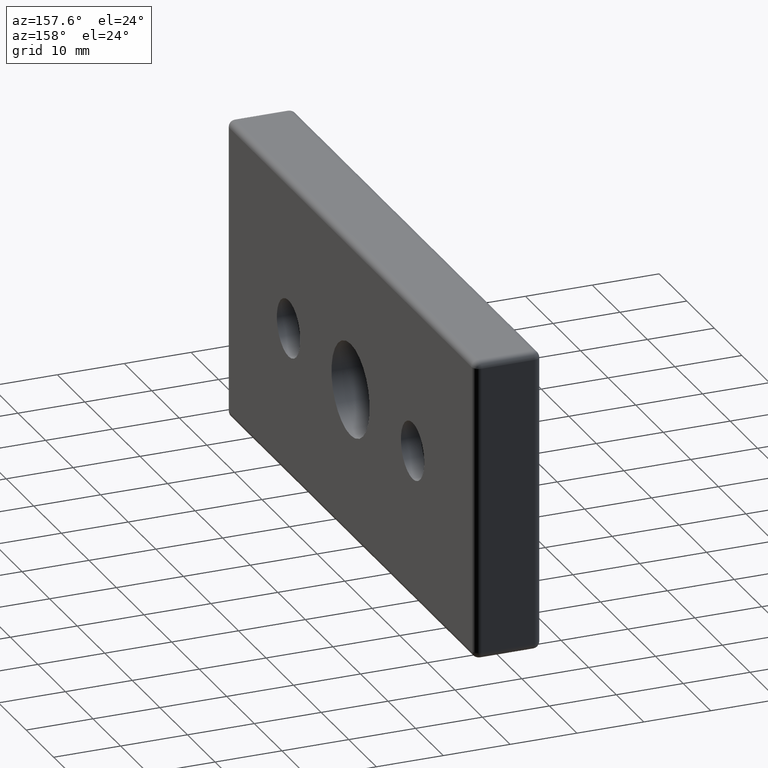
[diagram: clean part render]
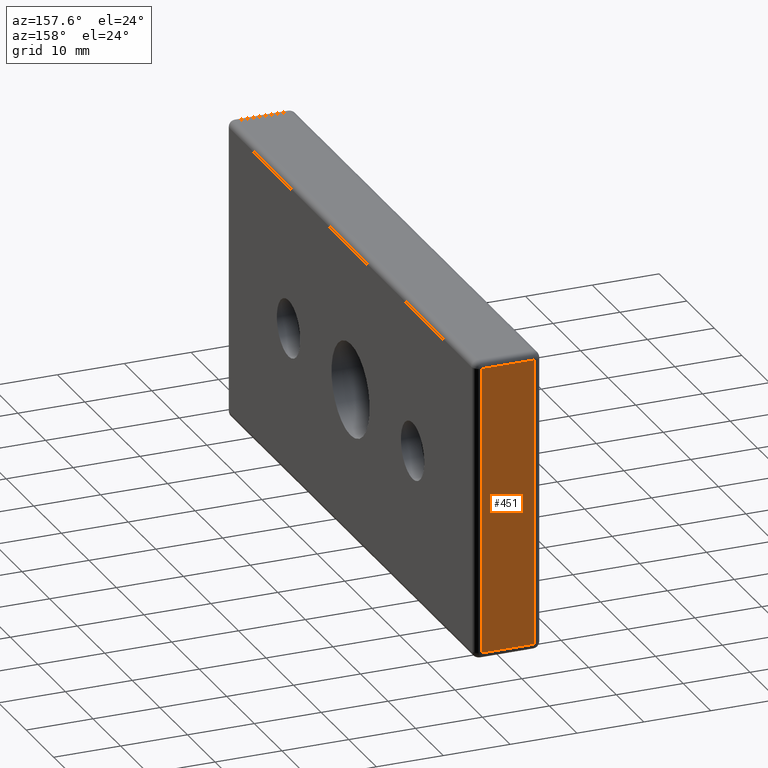
[diagram: same view with one face highlighted and labeled with its STEP entity id]
A machine part, auxiliary view. The second image highlights one B-rep face of the part: STEP entity #451.
In plain terms, the highlighted planar face has unit normal (0, 1, 0).
Its self-contained STEP definition (entity closure, byte-faithful):
#29=PLANE('',#510);
#37=LINE('',#723,#61);
#40=LINE('',#749,#64);
#43=LINE('',#753,#67);
#57=LINE('',#781,#81);
#61=VECTOR('',#569,8.);
#64=VECTOR('',#600,8.);
#67=VECTOR('',#605,43.);
#81=VECTOR('',#641,43.);
#122=FACE_OUTER_BOUND('',#155,.T.);
#155=EDGE_LOOP('',(#382,#383,#384,#385));
#216=VERTEX_POINT('',#697);
#220=VERTEX_POINT('',#708);
#223=VERTEX_POINT('',#715);
#234=VERTEX_POINT('',#745);
#261=EDGE_CURVE('',#223,#216,#37,.T.);
#273=EDGE_CURVE('',#220,#234,#40,.T.);
#276=EDGE_CURVE('',#234,#223,#43,.T.);
#293=EDGE_CURVE('',#216,#220,#57,.T.);
#382=ORIENTED_EDGE('',*,*,#273,.F.);
#383=ORIENTED_EDGE('',*,*,#293,.F.);
#384=ORIENTED_EDGE('',*,*,#261,.F.);
#385=ORIENTED_EDGE('',*,*,#276,.F.);
#451=ADVANCED_FACE('',(#122),#29,.T.);
#510=AXIS2_PLACEMENT_3D('',#786,#648,#649);
#569=DIRECTION('',(1.,0.,0.));
#600=DIRECTION('',(-1.,0.,0.));
#605=DIRECTION('',(0.,0.,-1.));
#641=DIRECTION('',(0.,0.,1.));
#648=DIRECTION('center_axis',(0.,1.,0.));
#649=DIRECTION('ref_axis',(0.,0.,1.));
#697=CARTESIAN_POINT('',(4.,45.,-21.5));
#708=CARTESIAN_POINT('',(4.,45.,21.5));
#715=CARTESIAN_POINT('',(-4.,45.,-21.5));
#723=CARTESIAN_POINT('',(0.,45.,-21.5));
#745=CARTESIAN_POINT('',(-4.,45.,21.5));
#749=CARTESIAN_POINT('',(0.,45.,21.5));
#753=CARTESIAN_POINT('',(-4.,45.,-11.25));
#781=CARTESIAN_POINT('',(4.,45.,-11.25));
#786=CARTESIAN_POINT('Origin',(0.,45.,-22.5));